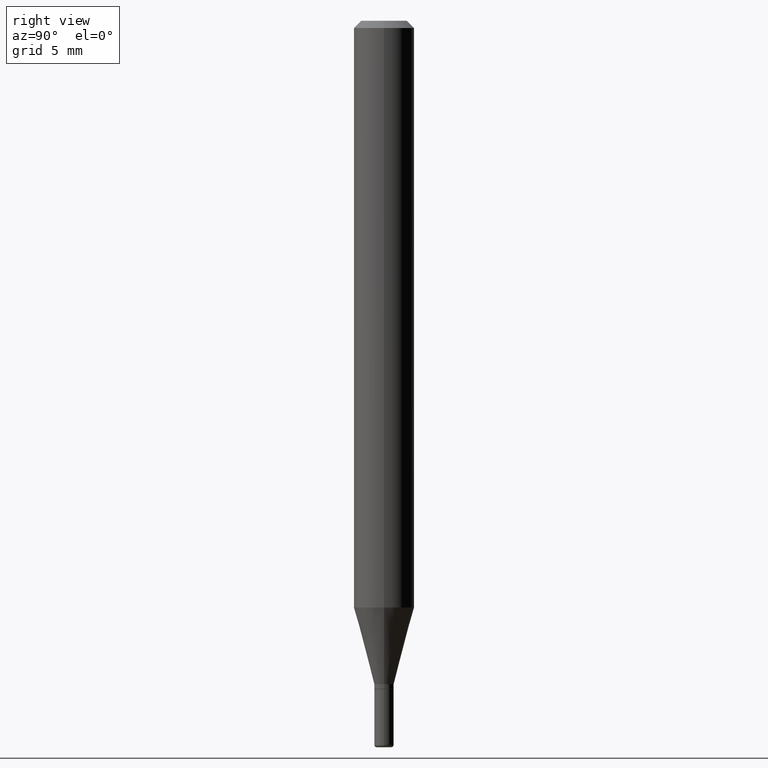
[diagram: clean part render]
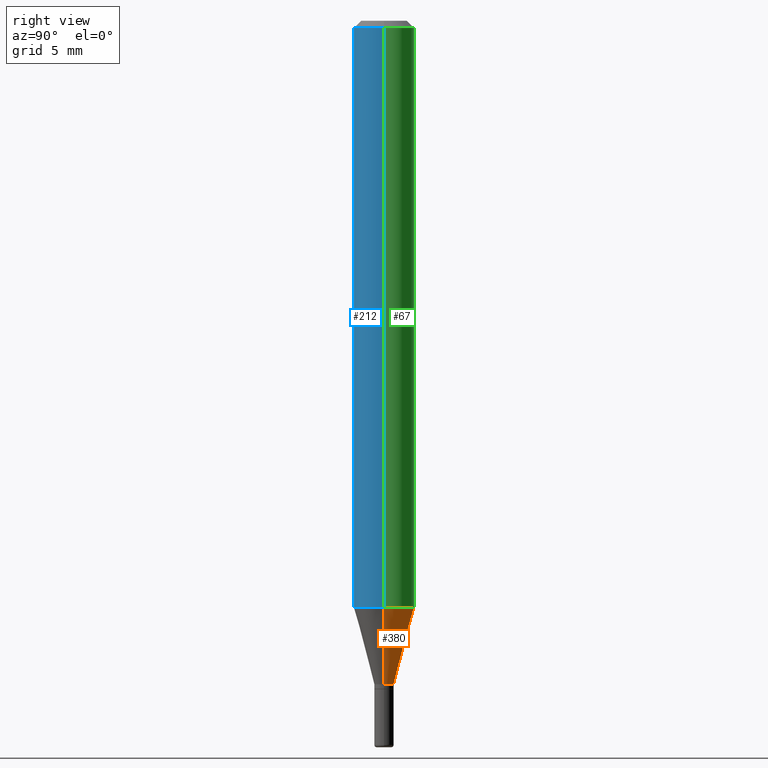
[diagram: same view with three faces highlighted in distinct colors, each labeled with its STEP entity id]
A machine part, right view with three faces highlighted in distinct colors.
Their STEP definitions:

[orange] entity #380 — the highlighted conical surface has half-angle 15 deg.
#6 = VECTOR ( 'NONE', #191, 39.37007874015748854 ) ;
#16 = CIRCLE ( 'NONE', #85, 0.02000000000000008021 ) ;
#31 = DIRECTION ( 'NONE',  ( -2.445468806185136597E-29, 3.491481338843145583E-15, 1.000000000000000000 ) ) ;
#37 = CARTESIAN_POINT ( 'NONE',  ( -0.02000000000000008021, -4.213334858521442823E-15, -1.370000000000000329 ) ) ;
#51 = EDGE_CURVE ( 'NONE', #244, #516, #250, .T. ) ;
#56 = DIRECTION ( 'NONE',  ( -2.445468806185136597E-29, 3.491481338843145583E-15, 1.000000000000000000 ) ) ;
#70 = CARTESIAN_POINT ( 'NONE',  ( -0.02000000000000008021, -4.641220887063090519E-15, -1.370000000000000329 ) ) ;
#73 = CARTESIAN_POINT ( 'NONE',  ( 0.06250000000000000000, -4.665973207185250989E-15, -1.211387840678323391 ) ) ;
#85 = AXIS2_PLACEMENT_3D ( 'NONE', #387, #31, #424 ) ;
#92 = CONICAL_SURFACE ( 'NONE', #263, 0.02000000000000008021, 0.2617993877991493523 ) ;
#109 = FACE_OUTER_BOUND ( 'NONE', #203, .T. ) ;
#156 = ORIENTED_EDGE ( 'NONE', *, *, #398, .T. ) ;
#169 = ORIENTED_EDGE ( 'NONE', *, *, #274, .F. ) ;
#188 = LINE ( 'NONE', #70, #6 ) ;
#191 = DIRECTION ( 'NONE',  ( -0.2588190451025206285, 5.211531920934544731E-15, 0.9659258262890682012 ) ) ;
#192 = CARTESIAN_POINT ( 'NONE',  ( 0.02000000000000008021, -4.922988687768836490E-15, -1.370000000000000329 ) ) ;
#203 = EDGE_LOOP ( 'NONE', ( #156, #404, #456, #169 ) ) ;
#229 = EDGE_CURVE ( 'NONE', #395, #516, #188, .T. ) ;
#238 = DIRECTION ( 'NONE',  ( 1.000000000000000000, -6.982962677686256455E-15, 0.000000000000000000 ) ) ;
#244 = VERTEX_POINT ( 'NONE', #73 ) ;
#250 = CIRCLE ( 'NONE', #382, 0.06250000000000000000 ) ;
#263 = AXIS2_PLACEMENT_3D ( 'NONE', #266, #394, #238 ) ;
#266 = CARTESIAN_POINT ( 'NONE',  ( 3.350292264473637608E-29, -4.783329434215110683E-15, -1.370000000000000329 ) ) ;
#270 = CARTESIAN_POINT ( 'NONE',  ( -0.06250000000000000000, -3.785448829979796704E-15, -1.211387840678323391 ) ) ;
#274 = EDGE_CURVE ( 'NONE', #403, #244, #346, .T. ) ;
#288 = VECTOR ( 'NONE', #476, 39.37007874015748854 ) ;
#346 = LINE ( 'NONE', #348, #288 ) ;
#348 = CARTESIAN_POINT ( 'NONE',  ( 0.02000000000000008021, -4.922988687768836490E-15, -1.370000000000000329 ) ) ;
#371 = DIRECTION ( 'NONE',  ( 1.000000000000000000, -6.982962677686270655E-15, 0.000000000000000000 ) ) ;
#380 = ADVANCED_FACE ( 'NONE', ( #109 ), #92, .T. ) ;
#382 = AXIS2_PLACEMENT_3D ( 'NONE', #416, #56, #371 ) ;
#387 = CARTESIAN_POINT ( 'NONE',  ( 3.350292264473637608E-29, -4.783329434215110683E-15, -1.370000000000000329 ) ) ;
#394 = DIRECTION ( 'NONE',  ( -2.445468806185136597E-29, 3.491481338843145583E-15, 1.000000000000000000 ) ) ;
#395 = VERTEX_POINT ( 'NONE', #37 ) ;
#398 = EDGE_CURVE ( 'NONE', #403, #395, #16, .T. ) ;
#403 = VERTEX_POINT ( 'NONE', #192 ) ;
#404 = ORIENTED_EDGE ( 'NONE', *, *, #229, .T. ) ;
#416 = CARTESIAN_POINT ( 'NONE',  ( 2.962411176570810218E-29, -4.229538039829860109E-15, -1.211387840678323391 ) ) ;
#424 = DIRECTION ( 'NONE',  ( 1.000000000000000000, -6.982962677686256455E-15, 0.000000000000000000 ) ) ;
#456 = ORIENTED_EDGE ( 'NONE', *, *, #51, .F. ) ;
#476 = DIRECTION ( 'NONE',  ( 0.2588190451025206285, 1.565188264969627095E-15, 0.9659258262890682012 ) ) ;
#516 = VERTEX_POINT ( 'NONE', #270 ) ;

[blue] entity #212 — the highlighted cylindrical surface (edge-blend (fillet) strip) has radius 1.5875 mm, axis along (-0, 0, 1).
#25 = CARTESIAN_POINT ( 'NONE',  ( 2.962411176570810218E-29, -4.229538039829860109E-15, -1.211387840678323391 ) ) ;
#28 = EDGE_CURVE ( 'NONE', #244, #88, #291, .T. ) ;
#30 = DIRECTION ( 'NONE',  ( 1.000000000000000000, -6.982962677686266711E-15, 4.876176775795935793E-29 ) ) ;
#65 = CIRCLE ( 'NONE', #305, 0.06250000000000000000 ) ;
#73 = CARTESIAN_POINT ( 'NONE',  ( 0.06250000000000000000, -4.665973207185250989E-15, -1.211387840678323391 ) ) ;
#79 = ORIENTED_EDGE ( 'NONE', *, *, #28, .T. ) ;
#88 = VERTEX_POINT ( 'NONE', #296 ) ;
#124 = ORIENTED_EDGE ( 'NONE', *, *, #493, .F. ) ;
#148 = DIRECTION ( 'NONE',  ( -2.445468806185136597E-29, 3.491481338843145583E-15, 1.000000000000000000 ) ) ;
#149 = DIRECTION ( 'NONE',  ( -2.445468806185136597E-29, 3.491481338843145583E-15, 1.000000000000000000 ) ) ;
#212 = ADVANCED_FACE ( 'NONE', ( #413 ), #335, .T. ) ;
#213 = EDGE_CURVE ( 'NONE', #516, #440, #311, .T. ) ;
#221 = CARTESIAN_POINT ( 'NONE',  ( 0.000000000000000000, 0.000000000000000000, 0.000000000000000000 ) ) ;
#230 = CARTESIAN_POINT ( 'NONE',  ( 3.668203209277632395E-31, -5.237222008264614861E-17, -0.01499999999999970281 ) ) ;
#244 = VERTEX_POINT ( 'NONE', #73 ) ;
#257 = AXIS2_PLACEMENT_3D ( 'NONE', #25, #149, #341 ) ;
#270 = CARTESIAN_POINT ( 'NONE',  ( -0.06250000000000000000, -3.785448829979796704E-15, -1.211387840678323391 ) ) ;
#289 = EDGE_LOOP ( 'NONE', ( #442, #445, #79, #124 ) ) ;
#291 = LINE ( 'NONE', #327, #401 ) ;
#296 = CARTESIAN_POINT ( 'NONE',  ( 0.06250000000000000000, -4.888073874380378612E-16, -0.01499999999999970281 ) ) ;
#305 = AXIS2_PLACEMENT_3D ( 'NONE', #230, #473, #508 ) ;
#311 = LINE ( 'NONE', #388, #381 ) ;
#327 = CARTESIAN_POINT ( 'NONE',  ( 0.06250000000000000000, -4.364351673553916694E-16, 3.047610484872459871E-30 ) ) ;
#335 = CYLINDRICAL_SURFACE ( 'NONE', #518, 0.06250000000000000000 ) ;
#341 = DIRECTION ( 'NONE',  ( 1.000000000000000000, -6.982962677686270655E-15, 0.000000000000000000 ) ) ;
#381 = VECTOR ( 'NONE', #428, 39.37007874015748143 ) ;
#385 = CARTESIAN_POINT ( 'NONE',  ( -0.06250000000000000000, -1.696865920106190386E-15, -0.01499999999999970281 ) ) ;
#388 = CARTESIAN_POINT ( 'NONE',  ( -0.06250000000000000000, 4.440892098500626162E-16, -3.074334431409316114E-30 ) ) ;
#401 = VECTOR ( 'NONE', #488, 39.37007874015748143 ) ;
#413 = FACE_OUTER_BOUND ( 'NONE', #289, .T. ) ;
#417 = CIRCLE ( 'NONE', #257, 0.06250000000000000000 ) ;
#428 = DIRECTION ( 'NONE',  ( -2.445468806185136877E-29, 3.491481338843145188E-15, 1.000000000000000000 ) ) ;
#439 = EDGE_CURVE ( 'NONE', #516, #244, #417, .T. ) ;
#440 = VERTEX_POINT ( 'NONE', #385 ) ;
#442 = ORIENTED_EDGE ( 'NONE', *, *, #213, .F. ) ;
#445 = ORIENTED_EDGE ( 'NONE', *, *, #439, .T. ) ;
#473 = DIRECTION ( 'NONE',  ( -2.445468806185136597E-29, 3.491481338843145583E-15, 1.000000000000000000 ) ) ;
#488 = DIRECTION ( 'NONE',  ( -2.445468806185136877E-29, 3.491481338843145188E-15, 1.000000000000000000 ) ) ;
#493 = EDGE_CURVE ( 'NONE', #440, #88, #65, .T. ) ;
#508 = DIRECTION ( 'NONE',  ( 1.000000000000000000, -6.982962677686266711E-15, 0.000000000000000000 ) ) ;
#516 = VERTEX_POINT ( 'NONE', #270 ) ;
#518 = AXIS2_PLACEMENT_3D ( 'NONE', #221, #148, #30 ) ;

[green] entity #67 — the highlighted cylindrical surface (edge-blend (fillet) strip) has radius 1.5875 mm, axis along (-0, 0, 1).
#13 = CYLINDRICAL_SURFACE ( 'NONE', #443, 0.06250000000000000000 ) ;
#18 = DIRECTION ( 'NONE',  ( -2.445468806185136597E-29, 3.491481338843145583E-15, 1.000000000000000000 ) ) ;
#28 = EDGE_CURVE ( 'NONE', #244, #88, #291, .T. ) ;
#51 = EDGE_CURVE ( 'NONE', #244, #516, #250, .T. ) ;
#53 = FACE_OUTER_BOUND ( 'NONE', #209, .T. ) ;
#56 = DIRECTION ( 'NONE',  ( -2.445468806185136597E-29, 3.491481338843145583E-15, 1.000000000000000000 ) ) ;
#67 = ADVANCED_FACE ( 'NONE', ( #53 ), #13, .T. ) ;
#73 = CARTESIAN_POINT ( 'NONE',  ( 0.06250000000000000000, -4.665973207185250989E-15, -1.211387840678323391 ) ) ;
#88 = VERTEX_POINT ( 'NONE', #296 ) ;
#171 = CARTESIAN_POINT ( 'NONE',  ( 0.000000000000000000, 0.000000000000000000, 0.000000000000000000 ) ) ;
#209 = EDGE_LOOP ( 'NONE', ( #334, #275, #317, #245 ) ) ;
#213 = EDGE_CURVE ( 'NONE', #516, #440, #311, .T. ) ;
#225 = DIRECTION ( 'NONE',  ( -2.445468806185136597E-29, 3.491481338843145583E-15, 1.000000000000000000 ) ) ;
#237 = EDGE_CURVE ( 'NONE', #88, #440, #449, .T. ) ;
#244 = VERTEX_POINT ( 'NONE', #73 ) ;
#245 = ORIENTED_EDGE ( 'NONE', *, *, #28, .F. ) ;
#250 = CIRCLE ( 'NONE', #382, 0.06250000000000000000 ) ;
#270 = CARTESIAN_POINT ( 'NONE',  ( -0.06250000000000000000, -3.785448829979796704E-15, -1.211387840678323391 ) ) ;
#271 = CARTESIAN_POINT ( 'NONE',  ( 3.668203209277632395E-31, -5.237222008264614861E-17, -0.01499999999999970281 ) ) ;
#275 = ORIENTED_EDGE ( 'NONE', *, *, #213, .T. ) ;
#291 = LINE ( 'NONE', #327, #401 ) ;
#296 = CARTESIAN_POINT ( 'NONE',  ( 0.06250000000000000000, -4.888073874380378612E-16, -0.01499999999999970281 ) ) ;
#311 = LINE ( 'NONE', #388, #381 ) ;
#317 = ORIENTED_EDGE ( 'NONE', *, *, #237, .F. ) ;
#327 = CARTESIAN_POINT ( 'NONE',  ( 0.06250000000000000000, -4.364351673553916694E-16, 3.047610484872459871E-30 ) ) ;
#334 = ORIENTED_EDGE ( 'NONE', *, *, #51, .T. ) ;
#371 = DIRECTION ( 'NONE',  ( 1.000000000000000000, -6.982962677686270655E-15, 0.000000000000000000 ) ) ;
#381 = VECTOR ( 'NONE', #428, 39.37007874015748143 ) ;
#382 = AXIS2_PLACEMENT_3D ( 'NONE', #416, #56, #371 ) ;
#385 = CARTESIAN_POINT ( 'NONE',  ( -0.06250000000000000000, -1.696865920106190386E-15, -0.01499999999999970281 ) ) ;
#386 = DIRECTION ( 'NONE',  ( 1.000000000000000000, -6.982962677686266711E-15, 0.000000000000000000 ) ) ;
#388 = CARTESIAN_POINT ( 'NONE',  ( -0.06250000000000000000, 4.440892098500626162E-16, -3.074334431409316114E-30 ) ) ;
#401 = VECTOR ( 'NONE', #488, 39.37007874015748143 ) ;
#416 = CARTESIAN_POINT ( 'NONE',  ( 2.962411176570810218E-29, -4.229538039829860109E-15, -1.211387840678323391 ) ) ;
#428 = DIRECTION ( 'NONE',  ( -2.445468806185136877E-29, 3.491481338843145188E-15, 1.000000000000000000 ) ) ;
#440 = VERTEX_POINT ( 'NONE', #385 ) ;
#443 = AXIS2_PLACEMENT_3D ( 'NONE', #171, #18, #490 ) ;
#449 = CIRCLE ( 'NONE', #501, 0.06250000000000000000 ) ;
#488 = DIRECTION ( 'NONE',  ( -2.445468806185136877E-29, 3.491481338843145188E-15, 1.000000000000000000 ) ) ;
#490 = DIRECTION ( 'NONE',  ( 1.000000000000000000, -6.982962677686266711E-15, 4.876176775795935793E-29 ) ) ;
#501 = AXIS2_PLACEMENT_3D ( 'NONE', #271, #225, #386 ) ;
#516 = VERTEX_POINT ( 'NONE', #270 ) ;